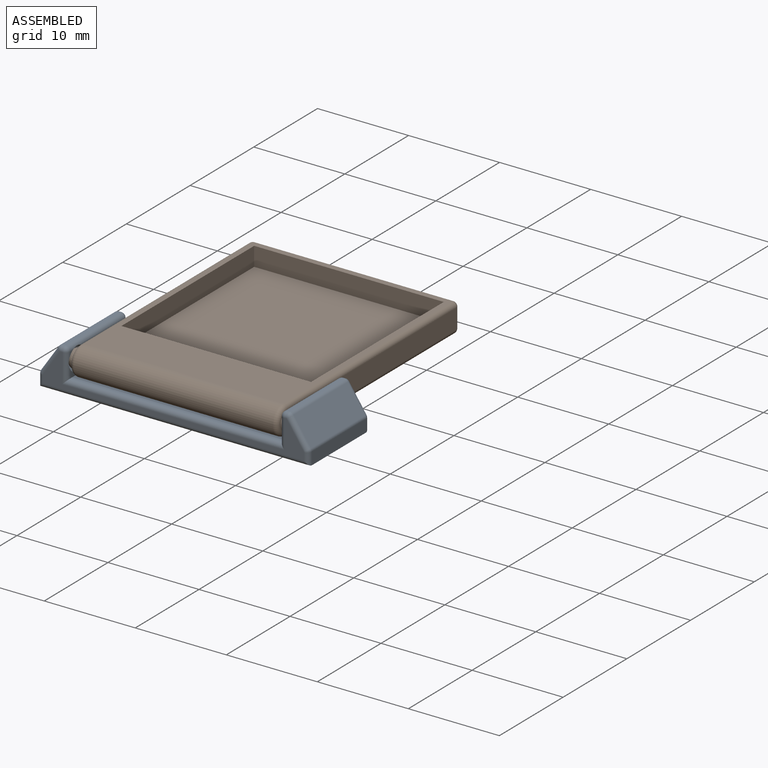
[diagram: assembled view]
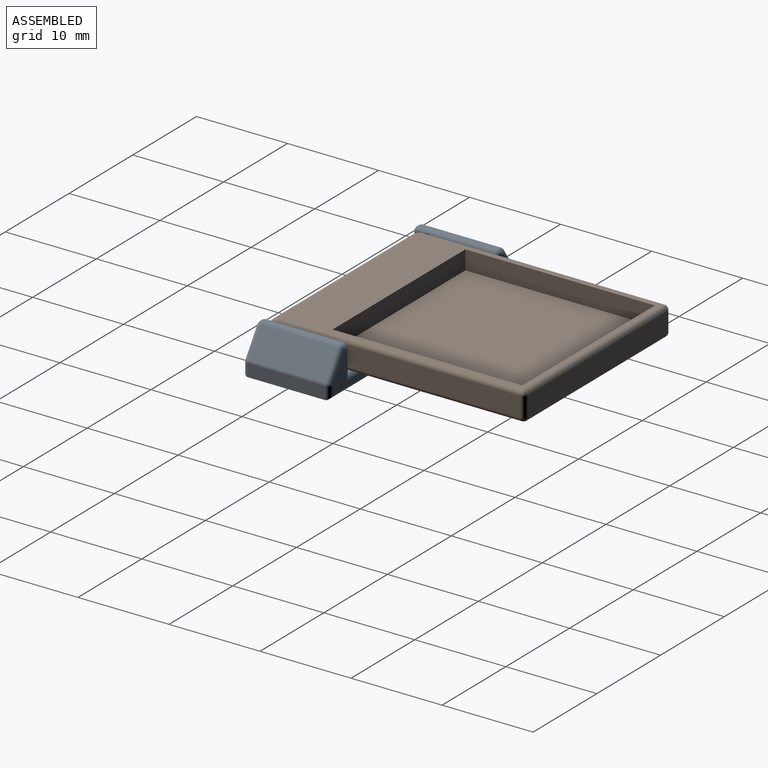
[diagram: assembled view, second angle]
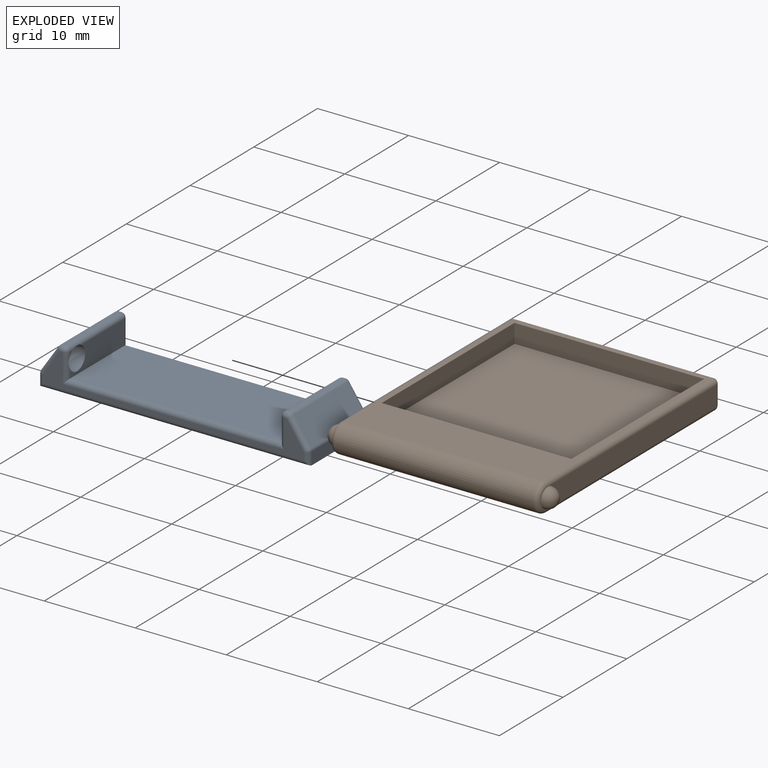
[diagram: exploded view]
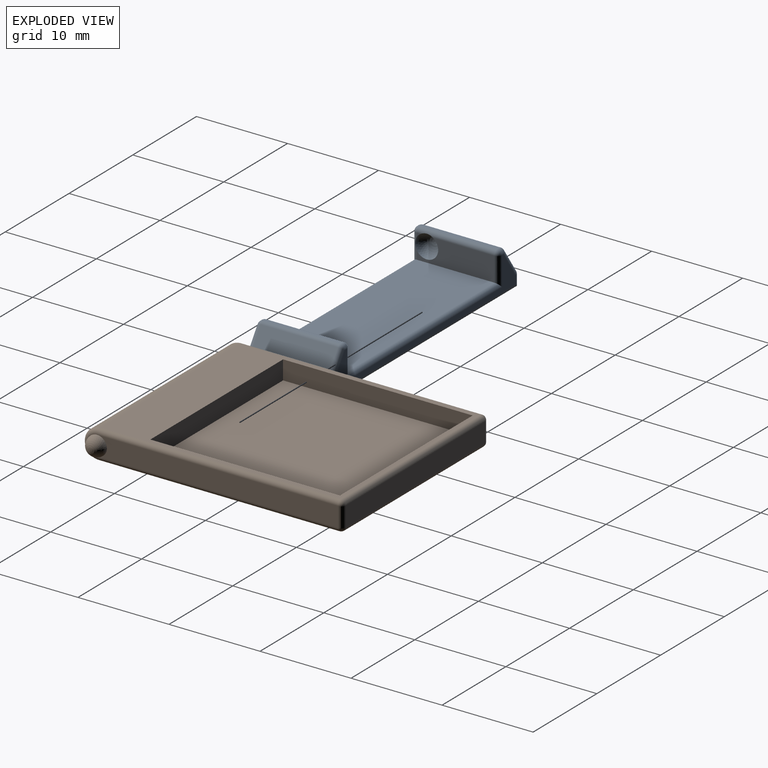
[diagram: exploded view, second angle]
ASSEMBLY  parts=2 mates=2
PART A: 54 faces, bbox 29.7x9.5x4.7 mm
  f0: plane 8.51x2.67mm, normal (1,0,0), area 17.9mm2, adj f11,f12,f32,f39,f40
  f1: plane 8.51x2.67mm, normal (-1,0,0), area 17.9mm2, adj f11,f13,f22,f23,f31
  f2: plane 8.51x1.37mm, normal (1,0,0), area 11.6mm2, adj f8,f28,f29,f38
  f3: plane 8.51x1.37mm, normal (-1,0,0), area 11.6mm2, adj f8,f37,f47,f48
  f4: plane 8.51x0.24mm, normal (0,0,1), area 2mm2, adj f40,f41,f49,f50
  f5: plane 8.51x0.24mm, normal (0,0,1), area 2mm2, adj f16,f20,f21,f22
  f6: plane 28.7x3.68mm, normal (0,-1,0), area 22.9mm2, adj f16,f19,f23,f27,f28,f32,f33,f37
  f7: plane 28.7x3.68mm, normal (0,1,0), area 22.9mm2, adj f21,f30,f31,f35,f38,f39,f44,f48
  f8: plane 29.72x8.51mm, normal (0,0,-1), area 252.9mm2, adj f2,f3,f33,f44
  f9: plane 0.41x0.41mm, normal (-1,0,0), area 0.1mm2, adj f13,f22,f23
  f10: plane 0.41x0.41mm, normal (1,0,0), area 0.1mm2, adj f12,f32,f40
  f11: plane 23.37x8.51mm, normal (0,0,1), area 198.8mm2, adj f0,f1,f27,f35
  f12: sphere r=1.27mm, area 10.1mm2, adj f0,f10,f32,f40
  f13: sphere r=1.27mm, area 10.1mm2, adj f1,f9,f22,f23
  f14: plane 8.51x2.82mm, normal (0.83,0,0.56), area 29.1mm2, adj f19,f20,f29,f30
  f15: plane 8.51x2.82mm, normal (-0.83,0,0.56), area 29.1mm2, adj f42,f47,f50,f53
  f16: cylinder r=0.51mm len=0.51mm, axis (-1,0,0), area 0.2mm2, adj f5,f6,f17,f18
  f17: sphere r=0.51mm, area 0.3mm2, adj f16,f19,f20
  f18: sphere r=0.51mm, area 0.4mm2, adj f16,f22,f23
  f19: cylinder r=0.51mm len=3.11mm, axis (-0.56,0,0.83), area 2.7mm2, adj f6,f14,f17,f24
  f20: cylinder r=0.51mm len=8.51mm, axis (0,1,0), area 4.2mm2, adj f5,f14,f17,f25
  f21: cylinder r=0.51mm len=0.51mm, axis (1,0,0), area 0.2mm2, adj f5,f7,f25,f26
  f22: cylinder r=0.51mm len=8.51mm, axis (0,-1,0), area 6.6mm2, adj f1,f5,f9,f13,f18,f26
  f23: cylinder r=0.51mm len=3.18mm, axis (0,0,1), area 2.1mm2, adj f1,f6,f9,f13,f18,f27
  f24: sphere r=0.51mm, area 0.2mm2, adj f19,f28,f29
  f25: sphere r=0.51mm, area 0.3mm2, adj f20,f21,f30
  f26: sphere r=0.51mm, area 0.4mm2, adj f21,f22,f31
  f27: cylinder r=0.51mm len=24.38mm, axis (-1,0,0), area 18.9mm2, adj f6,f11,f23,f32
  f28: cylinder r=0.51mm len=1.37mm, axis (0,0,-1), area 0.9mm2, adj f2,f6,f24,f33
  f29: cylinder r=0.51mm len=8.51mm, axis (0,1,0), area 2.6mm2, adj f2,f14,f24,f34
  f30: cylinder r=0.51mm len=3.11mm, axis (0.56,0,-0.83), area 2.7mm2, adj f7,f14,f25,f34
  f31: cylinder r=0.51mm len=3.18mm, axis (0,0,-1), area 2.3mm2, adj f1,f7,f26,f35
  f32: cylinder r=0.51mm len=3.18mm, axis (0,0,-1), area 2.1mm2, adj f0,f6,f10,f12,f27,f36
  f33: cylinder r=0.51mm len=29.72mm, axis (1,0,0), area 23.4mm2, adj f6,f8,f28,f37
  f34: sphere r=0.51mm, area 0.2mm2, adj f29,f30,f38
  f35: cylinder r=0.51mm len=24.38mm, axis (1,0,0), area 18.9mm2, adj f7,f11,f31,f39
  f36: sphere r=0.51mm, area 0.4mm2, adj f32,f40,f41
  f37: cylinder r=0.51mm len=1.37mm, axis (0,0,1), area 0.9mm2, adj f3,f6,f33,f43
  f38: cylinder r=0.51mm len=1.37mm, axis (0,0,1), area 0.9mm2, adj f2,f7,f34,f44
  f39: cylinder r=0.51mm len=3.18mm, axis (0,0,1), area 2.3mm2, adj f0,f7,f35,f45
  f40: cylinder r=0.51mm len=8.51mm, axis (0,1,0), area 6.6mm2, adj f0,f4,f10,f12,f36,f45
  f41: cylinder r=0.51mm len=0.51mm, axis (-1,0,0), area 0.2mm2, adj f4,f6,f36,f46
  f42: cylinder r=0.51mm len=3.11mm, axis (-0.56,0,-0.83), area 2.7mm2, adj f6,f15,f43,f46
  f43: sphere r=0.51mm, area 0.2mm2, adj f37,f42,f47
  f44: cylinder r=0.51mm len=29.72mm, axis (-1,0,0), area 23.4mm2, adj f7,f8,f38,f48
  f45: sphere r=0.51mm, area 0.4mm2, adj f39,f40,f49
  f46: sphere r=0.51mm, area 0.3mm2, adj f41,f42,f50
  f47: cylinder r=0.51mm len=8.51mm, axis (0,-1,0), area 2.6mm2, adj f3,f15,f43,f51
  f48: cylinder r=0.51mm len=1.37mm, axis (0,0,-1), area 0.9mm2, adj f3,f7,f44,f51
  f49: cylinder r=0.51mm len=0.51mm, axis (1,0,0), area 0.2mm2, adj f4,f7,f45,f52
  f50: cylinder r=0.51mm len=8.51mm, axis (0,1,0), area 4.2mm2, adj f4,f15,f46,f52
  f51: sphere r=0.51mm, area 0.2mm2, adj f47,f48,f53
  f52: sphere r=0.51mm, area 0.3mm2, adj f49,f50,f53
  f53: cylinder r=0.51mm len=3.11mm, axis (0.56,0,0.83), area 2.7mm2, adj f7,f15,f51,f52
PART B: 27 faces, bbox 25x28.7x3.4 mm
  f0: plane 26.48x21.84mm, normal (0,0,1), area 144.6mm2, adj f5,f6,f7,f8,f10,f12,f17,f22
  f1: plane 26.48x2.16mm, normal (1,0,0), area 55.3mm2, adj f18,f22,f23,f25
  f2: plane 21.84x2.16mm, normal (0,1,0), area 47.2mm2, adj f13,f17,f18,f19
  f3: plane 26.48x2.16mm, normal (-1,0,0), area 55.3mm2, adj f12,f13,f14,f26
  f4: plane 26.48x21.84mm, normal (0,0,-1), area 578.4mm2, adj f10,f14,f19,f23
  f5: plane 20.83x2.08mm, normal (0,1,0), area 43.4mm2, adj f0,f6,f8,f9
  f6: plane 20.83x2.08mm, normal (-1,0,0), area 43.4mm2, adj f0,f5,f7,f9
  f7: plane 20.83x2.08mm, normal (0,-1,0), area 43.4mm2, adj f0,f6,f8,f9
  f8: plane 20.83x2.08mm, normal (1,0,0), area 43.4mm2, adj f0,f5,f7,f9
  f9: plane 20.83x20.83mm, normal (0,0,1), area 433.8mm2, adj f5,f6,f7,f8
  f10: cylinder r=1.59mm len=21.84mm, axis (-1,0,0), area 108.9mm2, adj f0,f4,f11,f24
  f11: torus R=1.08mm, axis (1,0,0), area 3.5mm2, adj f10,f12,f14,f26
  f12: cylinder r=0.51mm len=26.48mm, axis (0,1,0), area 21.1mm2, adj f0,f3,f11,f15
  f13: cylinder r=0.51mm len=2.16mm, axis (0,0,-1), area 1.7mm2, adj f2,f3,f15,f16
  f14: cylinder r=0.51mm len=26.48mm, axis (0,-1,0), area 21.1mm2, adj f3,f4,f11,f16
  f15: sphere r=0.51mm, area 0.4mm2, adj f12,f13,f17
  f16: sphere r=0.51mm, area 0.4mm2, adj f13,f14,f19
  f17: cylinder r=0.51mm len=21.84mm, axis (1,0,0), area 17.4mm2, adj f0,f2,f15,f20
  f18: cylinder r=0.51mm len=2.16mm, axis (0,0,1), area 1.7mm2, adj f1,f2,f20,f21
  f19: cylinder r=0.51mm len=21.84mm, axis (-1,0,0), area 17.4mm2, adj f2,f4,f16,f21
  f20: sphere r=0.51mm, area 0.4mm2, adj f17,f18,f22
  f21: sphere r=0.51mm, area 0.4mm2, adj f18,f19,f23
  f22: cylinder r=0.51mm len=26.48mm, axis (0,-1,0), area 21.1mm2, adj f0,f1,f20,f24
  f23: cylinder r=0.51mm len=26.48mm, axis (0,1,0), area 21.1mm2, adj f1,f4,f21,f24
  f24: torus R=1.08mm, axis (1,0,0), area 3.5mm2, adj f10,f22,f23,f25
  f25: sphere r=1.08mm, area 7.3mm2, adj f1,f24
  f26: sphere r=1.08mm, area 7.3mm2, adj f3,f11
PLACE A t=(-0.93,0.16,-3.09)mm fixed
PLACE B t=(-0.93,0.16,-1.57)mm
MATE revolute A.f0 <-> B.f24  axis (1,0,0) through (-12.62,-12.54,0.02)mm
MATE planar B.f0 <-> A.f5  axis (0,0,1) through (-0.93,-6.25,1.61)mm
